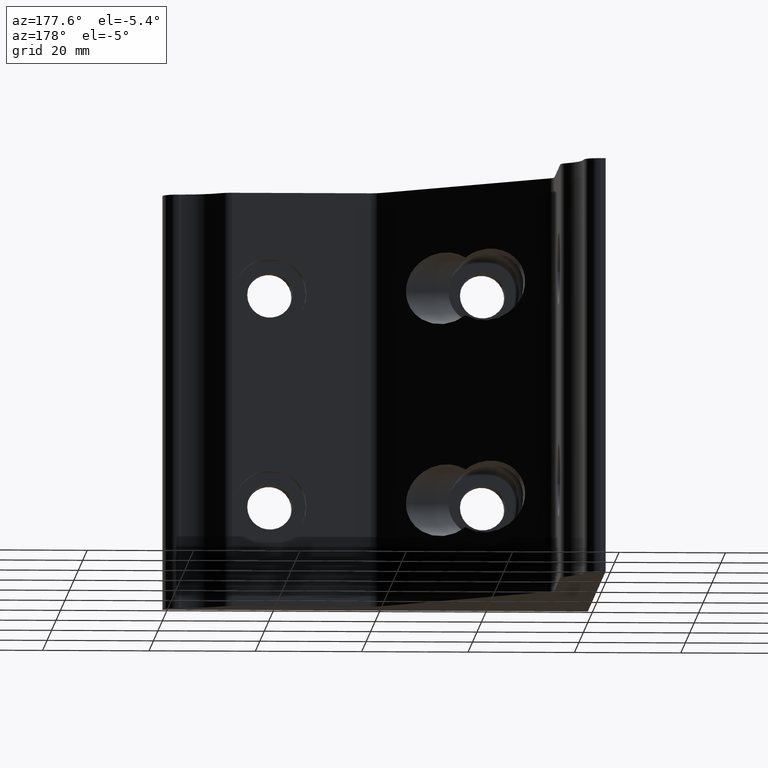
[diagram: clean part render]
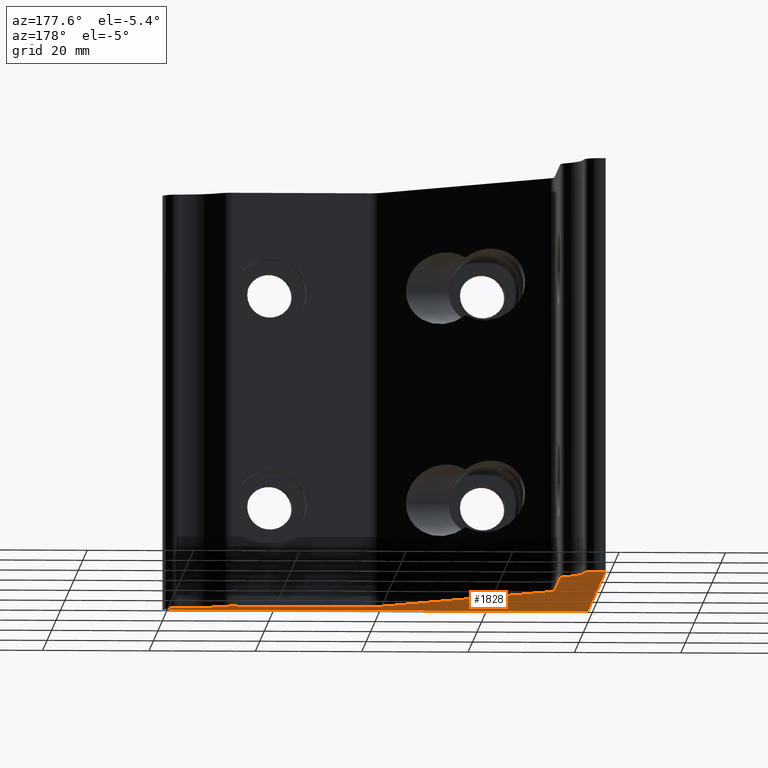
[diagram: same view with one face highlighted and labeled with its STEP entity id]
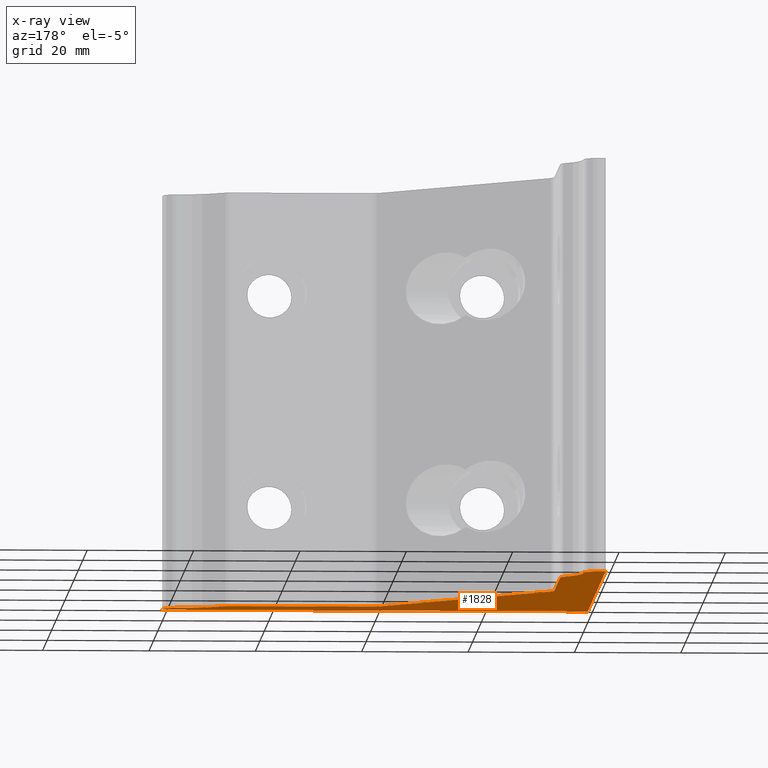
[diagram: x-ray of the same camera — body ghosted, the highlighted face saturated]
A machine part, auxiliary view. The second image highlights one B-rep face of the part: STEP entity #1828.
The next image is the same camera in x-ray: the body ghosted, the highlighted face saturated — about 0% of this face is hidden behind the body in this view.
In plain terms, the highlighted planar face has unit normal (0, 0, -1).
Its self-contained STEP definition (entity closure, byte-faithful):
#7=CARTESIAN_POINT('',(76.996746588543601,3.999155885909659,-39.0));
#8=VERTEX_POINT('',#7);
#17=CARTESIAN_POINT('',(76.610923176909978,3.999155885909659,-39.0));
#18=VERTEX_POINT('',#17);
#19=CARTESIAN_POINT('',(76.996746588543601,3.999155885909659,-39.0));
#20=DIRECTION('',(-1.0,0.0,0.0));
#21=VECTOR('',#20,0.385823411633623);
#22=LINE('',#19,#21);
#23=EDGE_CURVE('',#8,#18,#22,.T.);
#48=CARTESIAN_POINT('',(69.394278322275113,7.076726907620014,-39.0));
#49=VERTEX_POINT('',#48);
#50=CARTESIAN_POINT('',(76.610923176910106,13.999153597967961,-39.0));
#51=DIRECTION('',(0.0,0.0,-1.0));
#52=DIRECTION('',(-0.721664650576163,-0.692242827415918,0.0));
#53=AXIS2_PLACEMENT_3D('',#50,#51,#52);
#54=CIRCLE('',#53,9.999997712058296);
#55=EDGE_CURVE('',#18,#49,#54,.T.);
#81=CARTESIAN_POINT('',(67.229284856966046,7.999998217936536,-39.0));
#82=VERTEX_POINT('',#81);
#83=CARTESIAN_POINT('',(67.229284856966046,4.999998891960786,-39.0));
#84=DIRECTION('',(0.0,0.0,1.0));
#85=DIRECTION('',(0.0,1.0,0.0));
#86=AXIS2_PLACEMENT_3D('',#83,#84,#85);
#87=CIRCLE('',#86,2.999999325975750);
#88=EDGE_CURVE('',#49,#82,#87,.T.);
#114=CARTESIAN_POINT('',(41.242679625693995,7.999998217936081,-39.0));
#115=VERTEX_POINT('',#114);
#116=CARTESIAN_POINT('',(67.229284856966046,7.999998217936536,-39.0));
#117=DIRECTION('',(-1.0,0.0,0.0));
#118=VECTOR('',#117,25.986605231272051);
#119=LINE('',#116,#118);
#120=EDGE_CURVE('',#82,#115,#119,.T.);
#185=CARTESIAN_POINT('',(39.121359767308832,8.878677673410039,-39.0));
#186=VERTEX_POINT('',#185);
#187=CARTESIAN_POINT('',(41.242679625693995,10.999997531797817,-39.0));
#188=DIRECTION('',(0.0,0.0,-1.0));
#189=DIRECTION('',(-0.707106781186112,-0.707106781186983,0.0));
#190=AXIS2_PLACEMENT_3D('',#187,#188,#189);
#191=CIRCLE('',#190,2.999999313861521);
#192=EDGE_CURVE('',#115,#186,#191,.T.);
#218=CARTESIAN_POINT('',(8.878725800132770,39.121311640549720,-39.0));
#219=VERTEX_POINT('',#218);
#220=CARTESIAN_POINT('',(39.121359767308832,8.878677673410039,-39.0));
#221=DIRECTION('',(-0.707106781186973,0.707106781186122,0.0));
#222=VECTOR('',#221,42.769543118239902);
#223=LINE('',#220,#222);
#224=EDGE_CURVE('',#186,#219,#223,.T.);
#307=CARTESIAN_POINT('',(8.000046336878427,41.242631517715381,-39.0));
#308=VERTEX_POINT('',#307);
#309=CARTESIAN_POINT('',(11.000045677295589,41.242631517715381,-39.0));
#310=DIRECTION('',(0.0,0.0,-1.0));
#311=DIRECTION('',(-1.0,0.0,0.0));
#312=AXIS2_PLACEMENT_3D('',#309,#310,#311);
#313=CIRCLE('',#312,2.999999340417162);
#314=EDGE_CURVE('',#219,#308,#313,.T.);
#340=CARTESIAN_POINT('',(8.000046336878427,67.229236762324035,-39.0));
#341=VERTEX_POINT('',#340);
#342=CARTESIAN_POINT('',(8.000046336878427,41.242631517715381,-39.0));
#343=DIRECTION('',(0.0,1.0,0.0));
#344=VECTOR('',#343,25.986605244608654);
#345=LINE('',#342,#344);
#346=EDGE_CURVE('',#308,#341,#345,.T.);
#411=CARTESIAN_POINT('',(7.142662347967644,69.329045176290947,-39.0));
#412=VERTEX_POINT('',#411);
#413=CARTESIAN_POINT('',(5.000047067973128,67.229236762324035,-39.0));
#414=DIRECTION('',(0.0,0.0,1.0));
#415=DIRECTION('',(1.0,0.0,0.0));
#416=AXIS2_PLACEMENT_3D('',#413,#414,#415);
#417=CIRCLE('',#416,2.999999268905299);
#418=EDGE_CURVE('',#341,#412,#417,.T.);
#444=CARTESIAN_POINT('',(3.999252345070886,76.806299942714304,-39.0));
#445=VERTEX_POINT('',#444);
#446=CARTESIAN_POINT('',(13.999201727502172,76.610875047801997,-39.000000000000014));
#447=DIRECTION('',(0.0,0.0,-1.000000000000000));
#448=DIRECTION('',(-0.999809098298205,0.019538857697678,0.0));
#449=AXIS2_PLACEMENT_3D('',#446,#447,#448);
#450=CIRCLE('',#449,10.001858754288588);
#451=EDGE_CURVE('',#412,#445,#450,.T.);
#477=CARTESIAN_POINT('',(3.999252345070886,76.999982902768352,-39.0));
#478=VERTEX_POINT('',#477);
#479=CARTESIAN_POINT('',(3.999252345070886,76.806299942714304,-39.0));
#480=DIRECTION('',(0.0,1.0,0.0));
#481=VECTOR('',#480,0.193682960054048);
#482=LINE('',#479,#481);
#483=EDGE_CURVE('',#445,#478,#482,.T.);
#508=CARTESIAN_POINT('',(0.999253008161645,79.999982239680321,-39.0));
#509=VERTEX_POINT('',#508);
#510=CARTESIAN_POINT('',(0.999253008158917,76.999982902768352,-39.0));
#511=DIRECTION('',(0.0,0.0,1.0));
#512=DIRECTION('',(1.0,0.0,0.0));
#513=AXIS2_PLACEMENT_3D('',#510,#511,#512);
#514=CIRCLE('',#513,2.999999336911969);
#515=EDGE_CURVE('',#478,#509,#514,.T.);
#541=CARTESIAN_POINT('',(0.0,79.999982239680321,-39.0));
#542=VERTEX_POINT('',#541);
#543=CARTESIAN_POINT('',(0.0,79.999982239680321,-39.0));
#544=DIRECTION('',(1.0,0.0,0.0));
#545=VECTOR('',#544,0.999253008161645);
#546=LINE('',#543,#545);
#547=EDGE_CURVE('',#542,#509,#546,.T.);
#572=CARTESIAN_POINT('',(0.0,0.0,-39.0));
#573=VERTEX_POINT('',#572);
#574=CARTESIAN_POINT('',(0.0,0.0,-39.0));
#575=DIRECTION('',(0.0,1.0,0.0));
#576=VECTOR('',#575,79.999982239680321);
#577=LINE('',#574,#576);
#578=EDGE_CURVE('',#573,#542,#577,.T.);
#683=CARTESIAN_POINT('',(79.997492607542540,0.0,-39.0));
#684=VERTEX_POINT('',#683);
#685=CARTESIAN_POINT('',(0.0,0.0,-39.0));
#686=DIRECTION('',(1.0,0.0,0.0));
#687=VECTOR('',#686,79.997492607542540);
#688=LINE('',#685,#687);
#689=EDGE_CURVE('',#573,#684,#688,.T.);
#794=CARTESIAN_POINT('',(79.997492607542540,0.999156630858579,-39.0));
#795=VERTEX_POINT('',#794);
#796=CARTESIAN_POINT('',(79.997492607542540,0.0,-39.0));
#797=DIRECTION('',(0.0,1.0,0.0));
#798=VECTOR('',#797,0.999156630858579);
#799=LINE('',#796,#798);
#800=EDGE_CURVE('',#684,#795,#799,.T.);
#832=CARTESIAN_POINT('',(76.997493259572025,0.999156630858579,-39.0));
#833=DIRECTION('',(0.0,0.0,1.0));
#834=DIRECTION('',(1.0,0.0,0.0));
#835=AXIS2_PLACEMENT_3D('',#832,#833,#834);
#836=CIRCLE('',#835,2.999999347970515);
#837=EDGE_CURVE('',#795,#8,#836,.T.);
#1804=CARTESIAN_POINT('',(0.0,-14.661566089355802,-39.0));
#1805=DIRECTION('',(0.0,0.0,-1.0));
#1806=DIRECTION('',(0.0,1.0,0.0));
#1807=AXIS2_PLACEMENT_3D('',#1804,#1805,#1806);
#1808=PLANE('',#1807);
#1809=ORIENTED_EDGE('',*,*,#547,.T.);
#1810=ORIENTED_EDGE('',*,*,#515,.F.);
#1811=ORIENTED_EDGE('',*,*,#483,.F.);
#1812=ORIENTED_EDGE('',*,*,#451,.F.);
#1813=ORIENTED_EDGE('',*,*,#418,.F.);
#1814=ORIENTED_EDGE('',*,*,#346,.F.);
#1815=ORIENTED_EDGE('',*,*,#314,.F.);
#1816=ORIENTED_EDGE('',*,*,#224,.F.);
#1817=ORIENTED_EDGE('',*,*,#192,.F.);
#1818=ORIENTED_EDGE('',*,*,#120,.F.);
#1819=ORIENTED_EDGE('',*,*,#88,.F.);
#1820=ORIENTED_EDGE('',*,*,#55,.F.);
#1821=ORIENTED_EDGE('',*,*,#23,.F.);
#1822=ORIENTED_EDGE('',*,*,#837,.F.);
#1823=ORIENTED_EDGE('',*,*,#800,.F.);
#1824=ORIENTED_EDGE('',*,*,#689,.F.);
#1825=ORIENTED_EDGE('',*,*,#578,.T.);
#1826=EDGE_LOOP('',(#1809,#1810,#1811,#1812,#1813,#1814,#1815,#1816,#1817,#1818,#1819,#1820,#1821,#1822,#1823,#1824,#1825));
#1827=FACE_OUTER_BOUND('',#1826,.T.);
#1828=ADVANCED_FACE('',(#1827),#1808,.T.);